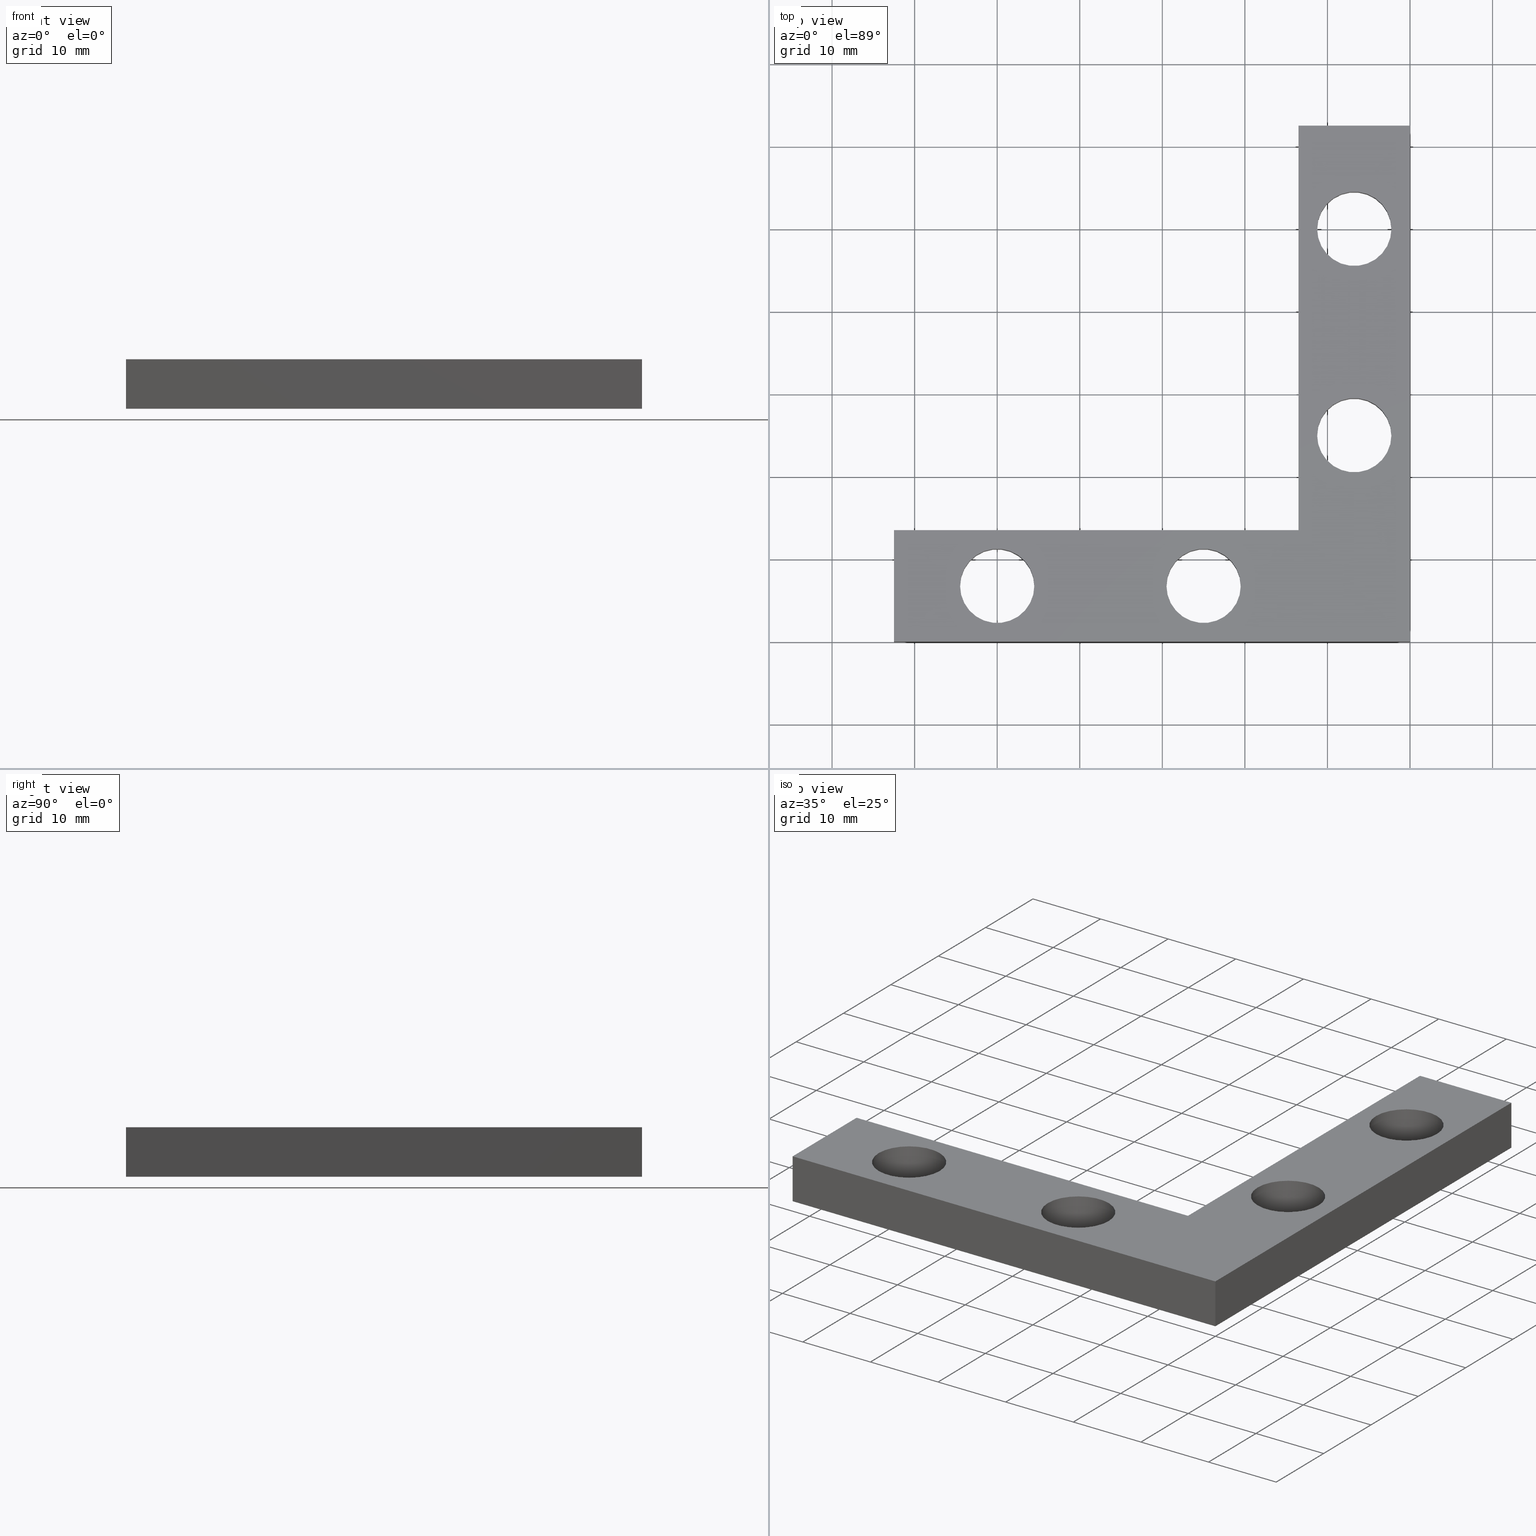
[diagram: canonical four-view strip — front | top / right | iso, engineering-drawing reading convention]
A machine part, canonical four-view strip (front | top / right | iso — engineering-drawing reading convention). The complete STEP part file that produces these views, byte-faithful:
ISO-10303-21;
HEADER;
/****************************************************************
 * Generated by software with PDE/Lib inside                    *
 * PDElib Version v4.4, created Mon 02/23/2004                  *
 * International Technegroup Inc. (www.iti-oh.com)              *
 ****************************************************************/
FILE_DESCRIPTION(('STEP AP203'),'2;1');
FILE_NAME('14.308.00.stp','2011-03-05T12:41:05',(''),(''),'2009.3.110','THINKDESIGN','');
FILE_SCHEMA(('CONFIG_CONTROL_DESIGN'));
ENDSEC;
DATA;
#2=CARTESIAN_POINT('',(-62.500028999750157,0.0,6.0));
#3=DIRECTION('',(0.0,1.0,0.0));
#4=DIRECTION('',(1.0,0.0,0.0));
#5=AXIS2_PLACEMENT_3D('',#2,#3,#4);
#6=PLANE('',#5);
#7=CARTESIAN_POINT('',(-62.500028999750157,0.0,6.0));
#8=VERTEX_POINT('',#7);
#9=CARTESIAN_POINT('',(-62.500028999750157,0.0,0.0));
#10=VERTEX_POINT('',#9);
#11=CARTESIAN_POINT('',(-62.500028999750157,0.0,6.0));
#12=DIRECTION('',(0.0,0.0,-1.0));
#13=VECTOR('',#12,6.0);
#14=LINE('',#11,#13);
#15=EDGE_CURVE('',#8,#10,#14,.T.);
#16=ORIENTED_EDGE('',*,*,#15,.T.);
#17=CARTESIAN_POINT('',(0.0,0.0,0.0));
#18=VERTEX_POINT('',#17);
#19=CARTESIAN_POINT('',(-62.500028999750157,0.0,0.0));
#20=DIRECTION('',(1.0,0.0,0.0));
#21=VECTOR('',#20,62.500028999750157);
#22=LINE('',#19,#21);
#23=EDGE_CURVE('',#10,#18,#22,.T.);
#24=ORIENTED_EDGE('',*,*,#23,.T.);
#25=CARTESIAN_POINT('',(0.0,0.0,6.0));
#26=VERTEX_POINT('',#25);
#27=CARTESIAN_POINT('',(0.0,0.0,6.0));
#28=DIRECTION('',(0.0,0.0,-1.0));
#29=VECTOR('',#28,6.0);
#30=LINE('',#27,#29);
#31=EDGE_CURVE('',#26,#18,#30,.T.);
#32=ORIENTED_EDGE('',*,*,#31,.F.);
#33=CARTESIAN_POINT('',(-62.500028999750157,0.0,6.0));
#34=DIRECTION('',(1.0,0.0,0.0));
#35=VECTOR('',#34,62.500028999750157);
#36=LINE('',#33,#35);
#37=EDGE_CURVE('',#8,#26,#36,.T.);
#38=ORIENTED_EDGE('',*,*,#37,.F.);
#39=EDGE_LOOP('',(#16,#24,#32,#38));
#40=FACE_OUTER_BOUND('',#39,.T.);
#41=ADVANCED_FACE('',(#40),#6,.F.);
#42=CARTESIAN_POINT('',(0.0,0.0,6.0));
#43=DIRECTION('',(-1.0,0.0,0.0));
#44=DIRECTION('',(0.0,1.0,0.0));
#45=AXIS2_PLACEMENT_3D('',#42,#43,#44);
#46=PLANE('',#45);
#47=ORIENTED_EDGE('',*,*,#31,.T.);
#48=CARTESIAN_POINT('',(0.0,62.499999999750344,0.0));
#49=VERTEX_POINT('',#48);
#50=CARTESIAN_POINT('',(0.0,0.0,0.0));
#51=DIRECTION('',(0.0,1.0,0.0));
#52=VECTOR('',#51,62.499999999750344);
#53=LINE('',#50,#52);
#54=EDGE_CURVE('',#18,#49,#53,.T.);
#55=ORIENTED_EDGE('',*,*,#54,.T.);
#56=CARTESIAN_POINT('',(0.0,62.499999999750344,6.0));
#57=VERTEX_POINT('',#56);
#58=CARTESIAN_POINT('',(0.0,62.499999999750344,6.0));
#59=DIRECTION('',(0.0,0.0,-1.0));
#60=VECTOR('',#59,6.0);
#61=LINE('',#58,#60);
#62=EDGE_CURVE('',#57,#49,#61,.T.);
#63=ORIENTED_EDGE('',*,*,#62,.F.);
#64=CARTESIAN_POINT('',(0.0,0.0,6.0));
#65=DIRECTION('',(0.0,1.0,0.0));
#66=VECTOR('',#65,62.499999999750344);
#67=LINE('',#64,#66);
#68=EDGE_CURVE('',#26,#57,#67,.T.);
#69=ORIENTED_EDGE('',*,*,#68,.F.);
#70=EDGE_LOOP('',(#47,#55,#63,#69));
#71=FACE_OUTER_BOUND('',#70,.T.);
#72=ADVANCED_FACE('',(#71),#46,.F.);
#73=CARTESIAN_POINT('',(0.0,62.499999999750344,6.0));
#74=DIRECTION('',(0.0,-1.0,0.0));
#75=DIRECTION('',(-1.0,0.0,0.0));
#76=AXIS2_PLACEMENT_3D('',#73,#74,#75);
#77=PLANE('',#76);
#78=ORIENTED_EDGE('',*,*,#62,.T.);
#79=CARTESIAN_POINT('',(-13.499999999945885,62.499999999750344,0.0));
#80=VERTEX_POINT('',#79);
#81=CARTESIAN_POINT('',(0.0,62.499999999750344,0.0));
#82=DIRECTION('',(-1.0,0.0,0.0));
#83=VECTOR('',#82,13.499999999945885);
#84=LINE('',#81,#83);
#85=EDGE_CURVE('',#49,#80,#84,.T.);
#86=ORIENTED_EDGE('',*,*,#85,.T.);
#87=CARTESIAN_POINT('',(-13.499999999945885,62.499999999750344,6.0));
#88=VERTEX_POINT('',#87);
#89=CARTESIAN_POINT('',(-13.499999999945885,62.499999999750344,6.0));
#90=DIRECTION('',(0.0,0.0,-1.0));
#91=VECTOR('',#90,6.0);
#92=LINE('',#89,#91);
#93=EDGE_CURVE('',#88,#80,#92,.T.);
#94=ORIENTED_EDGE('',*,*,#93,.F.);
#95=CARTESIAN_POINT('',(0.0,62.499999999750344,6.0));
#96=DIRECTION('',(-1.0,0.0,0.0));
#97=VECTOR('',#96,13.499999999945885);
#98=LINE('',#95,#97);
#99=EDGE_CURVE('',#57,#88,#98,.T.);
#100=ORIENTED_EDGE('',*,*,#99,.F.);
#101=EDGE_LOOP('',(#78,#86,#94,#100));
#102=FACE_OUTER_BOUND('',#101,.T.);
#103=ADVANCED_FACE('',(#102),#77,.F.);
#104=CARTESIAN_POINT('',(-13.499999999945885,62.499999999750344,6.0));
#105=DIRECTION('',(1.0,0.0,0.0));
#106=DIRECTION('',(0.0,-1.0,0.0));
#107=AXIS2_PLACEMENT_3D('',#104,#105,#106);
#108=PLANE('',#107);
#109=ORIENTED_EDGE('',*,*,#93,.T.);
#110=CARTESIAN_POINT('',(-13.499999999945885,13.499999999946340,0.0));
#111=VERTEX_POINT('',#110);
#112=CARTESIAN_POINT('',(-13.499999999945885,62.499999999750344,0.0));
#113=DIRECTION('',(0.0,-1.0,0.0));
#114=VECTOR('',#113,48.999999999804004);
#115=LINE('',#112,#114);
#116=EDGE_CURVE('',#80,#111,#115,.T.);
#117=ORIENTED_EDGE('',*,*,#116,.T.);
#118=CARTESIAN_POINT('',(-13.499999999945885,13.499999999946340,6.0));
#119=VERTEX_POINT('',#118);
#120=CARTESIAN_POINT('',(-13.499999999945885,13.499999999946340,6.0));
#121=DIRECTION('',(0.0,0.0,-1.0));
#122=VECTOR('',#121,6.0);
#123=LINE('',#120,#122);
#124=EDGE_CURVE('',#119,#111,#123,.T.);
#125=ORIENTED_EDGE('',*,*,#124,.F.);
#126=CARTESIAN_POINT('',(-13.499999999945885,62.499999999750344,6.0));
#127=DIRECTION('',(0.0,-1.0,0.0));
#128=VECTOR('',#127,48.999999999804004);
#129=LINE('',#126,#128);
#130=EDGE_CURVE('',#88,#119,#129,.T.);
#131=ORIENTED_EDGE('',*,*,#130,.F.);
#132=EDGE_LOOP('',(#109,#117,#125,#131));
#133=FACE_OUTER_BOUND('',#132,.T.);
#134=ADVANCED_FACE('',(#133),#108,.F.);
#135=CARTESIAN_POINT('',(-13.499999999945885,13.499999999946340,6.0));
#136=DIRECTION('',(0.0,-1.0,0.0));
#137=DIRECTION('',(-1.0,0.0,0.0));
#138=AXIS2_PLACEMENT_3D('',#135,#136,#137);
#139=PLANE('',#138);
#140=ORIENTED_EDGE('',*,*,#124,.T.);
#141=CARTESIAN_POINT('',(-62.500028999750157,13.499999999946340,0.0));
#142=VERTEX_POINT('',#141);
#143=CARTESIAN_POINT('',(-13.499999999945885,13.499999999946340,0.0));
#144=DIRECTION('',(-1.0,0.0,0.0));
#145=VECTOR('',#144,49.000028999804272);
#146=LINE('',#143,#145);
#147=EDGE_CURVE('',#111,#142,#146,.T.);
#148=ORIENTED_EDGE('',*,*,#147,.T.);
#149=CARTESIAN_POINT('',(-62.500028999750157,13.499999999946340,6.0));
#150=VERTEX_POINT('',#149);
#151=CARTESIAN_POINT('',(-62.500028999750157,13.499999999946340,6.0));
#152=DIRECTION('',(0.0,0.0,-1.0));
#153=VECTOR('',#152,6.0);
#154=LINE('',#151,#153);
#155=EDGE_CURVE('',#150,#142,#154,.T.);
#156=ORIENTED_EDGE('',*,*,#155,.F.);
#157=CARTESIAN_POINT('',(-13.499999999945885,13.499999999946340,6.0));
#158=DIRECTION('',(-1.0,0.0,0.0));
#159=VECTOR('',#158,49.000028999804272);
#160=LINE('',#157,#159);
#161=EDGE_CURVE('',#119,#150,#160,.T.);
#162=ORIENTED_EDGE('',*,*,#161,.F.);
#163=EDGE_LOOP('',(#140,#148,#156,#162));
#164=FACE_OUTER_BOUND('',#163,.T.);
#165=ADVANCED_FACE('',(#164),#139,.F.);
#166=CARTESIAN_POINT('',(-62.500028999750157,13.499999999946340,6.0));
#167=DIRECTION('',(1.0,0.0,0.0));
#168=DIRECTION('',(0.0,-1.0,0.0));
#169=AXIS2_PLACEMENT_3D('',#166,#167,#168);
#170=PLANE('',#169);
#171=ORIENTED_EDGE('',*,*,#155,.T.);
#172=CARTESIAN_POINT('',(-62.500028999750157,13.499999999946340,0.0));
#173=DIRECTION('',(0.0,-1.0,0.0));
#174=VECTOR('',#173,13.499999999946340);
#175=LINE('',#172,#174);
#176=EDGE_CURVE('',#142,#10,#175,.T.);
#177=ORIENTED_EDGE('',*,*,#176,.T.);
#178=ORIENTED_EDGE('',*,*,#15,.F.);
#179=CARTESIAN_POINT('',(-62.500028999750157,13.499999999946340,6.0));
#180=DIRECTION('',(0.0,-1.0,0.0));
#181=VECTOR('',#180,13.499999999946340);
#182=LINE('',#179,#181);
#183=EDGE_CURVE('',#150,#8,#182,.T.);
#184=ORIENTED_EDGE('',*,*,#183,.F.);
#185=EDGE_LOOP('',(#171,#177,#178,#184));
#186=FACE_OUTER_BOUND('',#185,.T.);
#187=ADVANCED_FACE('',(#186),#170,.F.);
#188=CARTESIAN_POINT('',(-68.750036632804040,-6.250004733020887,6.0));
#189=DIRECTION('',(0.0,0.0,1.0));
#190=DIRECTION('',(1.0,0.0,0.0));
#191=AXIS2_PLACEMENT_3D('',#188,#189,#190);
#192=PLANE('',#191);
#193=ORIENTED_EDGE('',*,*,#37,.T.);
#194=ORIENTED_EDGE('',*,*,#68,.T.);
#195=ORIENTED_EDGE('',*,*,#99,.T.);
#196=ORIENTED_EDGE('',*,*,#130,.T.);
#197=ORIENTED_EDGE('',*,*,#161,.T.);
#198=ORIENTED_EDGE('',*,*,#183,.T.);
#199=EDGE_LOOP('',(#193,#194,#195,#196,#197,#198));
#200=FACE_OUTER_BOUND('',#199,.T.);
#201=CARTESIAN_POINT('',(-54.500028999800179,6.749999999973170,6.0));
#202=VERTEX_POINT('',#201);
#203=CARTESIAN_POINT('',(-45.500028999800179,6.749999999973170,6.0));
#204=VERTEX_POINT('',#203);
#205=CARTESIAN_POINT('',(-50.000028999800179,6.749999999973170,6.0));
#206=DIRECTION('',(0.0,0.0,1.0));
#207=DIRECTION('',(1.0,0.0,0.0));
#208=AXIS2_PLACEMENT_3D('',#205,#206,#207);
#209=CIRCLE('',#208,4.500000000000000);
#210=EDGE_CURVE('',#202,#204,#209,.T.);
#211=ORIENTED_EDGE('',*,*,#210,.F.);
#212=CARTESIAN_POINT('',(-50.000028999800179,6.749999999973170,6.0));
#213=DIRECTION('',(0.0,0.0,1.0));
#214=DIRECTION('',(1.0,0.0,0.0));
#215=AXIS2_PLACEMENT_3D('',#212,#213,#214);
#216=CIRCLE('',#215,4.500000000000000);
#217=EDGE_CURVE('',#204,#202,#216,.T.);
#218=ORIENTED_EDGE('',*,*,#217,.F.);
#219=EDGE_LOOP('',(#211,#218));
#220=FACE_BOUND('',#219,.T.);
#221=CARTESIAN_POINT('',(-29.500028999900223,6.749999999973170,6.0));
#222=VERTEX_POINT('',#221);
#223=CARTESIAN_POINT('',(-20.500028999900223,6.749999999973170,6.0));
#224=VERTEX_POINT('',#223);
#225=CARTESIAN_POINT('',(-25.000028999900223,6.749999999973170,6.0));
#226=DIRECTION('',(0.0,0.0,1.0));
#227=DIRECTION('',(1.0,0.0,0.0));
#228=AXIS2_PLACEMENT_3D('',#225,#226,#227);
#229=CIRCLE('',#228,4.500000000000000);
#230=EDGE_CURVE('',#222,#224,#229,.T.);
#231=ORIENTED_EDGE('',*,*,#230,.F.);
#232=CARTESIAN_POINT('',(-25.000028999900223,6.749999999973170,6.0));
#233=DIRECTION('',(0.0,0.0,1.0));
#234=DIRECTION('',(1.0,0.0,0.0));
#235=AXIS2_PLACEMENT_3D('',#232,#233,#234);
#236=CIRCLE('',#235,4.500000000000000);
#237=EDGE_CURVE('',#224,#222,#236,.T.);
#238=ORIENTED_EDGE('',*,*,#237,.F.);
#239=EDGE_LOOP('',(#231,#238));
#240=FACE_BOUND('',#239,.T.);
#241=CARTESIAN_POINT('',(-11.249999999973170,24.999999999900410,6.0));
#242=VERTEX_POINT('',#241);
#243=CARTESIAN_POINT('',(-2.249999999973170,24.999999999900410,6.0));
#244=VERTEX_POINT('',#243);
#245=CARTESIAN_POINT('',(-6.749999999973170,24.999999999900410,6.0));
#246=DIRECTION('',(0.0,0.0,1.0));
#247=DIRECTION('',(1.0,0.0,0.0));
#248=AXIS2_PLACEMENT_3D('',#245,#246,#247);
#249=CIRCLE('',#248,4.500000000000000);
#250=EDGE_CURVE('',#242,#244,#249,.T.);
#251=ORIENTED_EDGE('',*,*,#250,.F.);
#252=CARTESIAN_POINT('',(-6.749999999973170,24.999999999900410,6.0));
#253=DIRECTION('',(0.0,0.0,1.0));
#254=DIRECTION('',(1.0,0.0,0.0));
#255=AXIS2_PLACEMENT_3D('',#252,#253,#254);
#256=CIRCLE('',#255,4.500000000000000);
#257=EDGE_CURVE('',#244,#242,#256,.T.);
#258=ORIENTED_EDGE('',*,*,#257,.F.);
#259=EDGE_LOOP('',(#251,#258));
#260=FACE_BOUND('',#259,.T.);
#261=CARTESIAN_POINT('',(-11.249999999973170,49.999999999800366,6.0));
#262=VERTEX_POINT('',#261);
#263=CARTESIAN_POINT('',(-2.249999999973170,49.999999999800366,6.0));
#264=VERTEX_POINT('',#263);
#265=CARTESIAN_POINT('',(-6.749999999973170,49.999999999800366,6.0));
#266=DIRECTION('',(0.0,0.0,1.0));
#267=DIRECTION('',(1.0,0.0,0.0));
#268=AXIS2_PLACEMENT_3D('',#265,#266,#267);
#269=CIRCLE('',#268,4.500000000000000);
#270=EDGE_CURVE('',#262,#264,#269,.T.);
#271=ORIENTED_EDGE('',*,*,#270,.F.);
#272=CARTESIAN_POINT('',(-6.749999999973170,49.999999999800366,6.0));
#273=DIRECTION('',(0.0,0.0,1.0));
#274=DIRECTION('',(1.0,0.0,0.0));
#275=AXIS2_PLACEMENT_3D('',#272,#273,#274);
#276=CIRCLE('',#275,4.500000000000000);
#277=EDGE_CURVE('',#264,#262,#276,.T.);
#278=ORIENTED_EDGE('',*,*,#277,.F.);
#279=EDGE_LOOP('',(#271,#278));
#280=FACE_BOUND('',#279,.T.);
#281=ADVANCED_FACE('',(#200,#220,#240,#260,#280),#192,.T.);
#282=CARTESIAN_POINT('',(-68.750036632804040,-6.250004733020887,0.0));
#283=DIRECTION('',(0.0,0.0,1.0));
#284=DIRECTION('',(1.0,0.0,0.0));
#285=AXIS2_PLACEMENT_3D('',#282,#283,#284);
#286=PLANE('',#285);
#287=ORIENTED_EDGE('',*,*,#176,.F.);
#288=ORIENTED_EDGE('',*,*,#147,.F.);
#289=ORIENTED_EDGE('',*,*,#116,.F.);
#290=ORIENTED_EDGE('',*,*,#85,.F.);
#291=ORIENTED_EDGE('',*,*,#54,.F.);
#292=ORIENTED_EDGE('',*,*,#23,.F.);
#293=EDGE_LOOP('',(#287,#288,#289,#290,#291,#292));
#294=FACE_OUTER_BOUND('',#293,.T.);
#295=CARTESIAN_POINT('',(-54.500028999800179,6.749999999973170,0.0));
#296=VERTEX_POINT('',#295);
#297=CARTESIAN_POINT('',(-45.500028999800179,6.749999999973170,0.0));
#298=VERTEX_POINT('',#297);
#299=CARTESIAN_POINT('',(-50.000028999800179,6.749999999973170,0.0));
#300=DIRECTION('',(0.0,0.0,-1.0));
#301=DIRECTION('',(1.0,0.0,0.0));
#302=AXIS2_PLACEMENT_3D('',#299,#300,#301);
#303=CIRCLE('',#302,4.500000000000000);
#304=EDGE_CURVE('',#296,#298,#303,.T.);
#305=ORIENTED_EDGE('',*,*,#304,.F.);
#306=CARTESIAN_POINT('',(-50.000028999800179,6.749999999973170,0.0));
#307=DIRECTION('',(0.0,0.0,-1.0));
#308=DIRECTION('',(1.0,0.0,0.0));
#309=AXIS2_PLACEMENT_3D('',#306,#307,#308);
#310=CIRCLE('',#309,4.500000000000000);
#311=EDGE_CURVE('',#298,#296,#310,.T.);
#312=ORIENTED_EDGE('',*,*,#311,.F.);
#313=EDGE_LOOP('',(#305,#312));
#314=FACE_BOUND('',#313,.T.);
#315=CARTESIAN_POINT('',(-29.500028999900223,6.749999999973170,0.0));
#316=VERTEX_POINT('',#315);
#317=CARTESIAN_POINT('',(-20.500028999900223,6.749999999973170,0.0));
#318=VERTEX_POINT('',#317);
#319=CARTESIAN_POINT('',(-25.000028999900223,6.749999999973170,0.0));
#320=DIRECTION('',(0.0,0.0,-1.0));
#321=DIRECTION('',(1.0,0.0,0.0));
#322=AXIS2_PLACEMENT_3D('',#319,#320,#321);
#323=CIRCLE('',#322,4.500000000000000);
#324=EDGE_CURVE('',#316,#318,#323,.T.);
#325=ORIENTED_EDGE('',*,*,#324,.F.);
#326=CARTESIAN_POINT('',(-25.000028999900223,6.749999999973170,0.0));
#327=DIRECTION('',(0.0,0.0,-1.0));
#328=DIRECTION('',(1.0,0.0,0.0));
#329=AXIS2_PLACEMENT_3D('',#326,#327,#328);
#330=CIRCLE('',#329,4.500000000000000);
#331=EDGE_CURVE('',#318,#316,#330,.T.);
#332=ORIENTED_EDGE('',*,*,#331,.F.);
#333=EDGE_LOOP('',(#325,#332));
#334=FACE_BOUND('',#333,.T.);
#335=CARTESIAN_POINT('',(-11.249999999973170,24.999999999900410,0.0));
#336=VERTEX_POINT('',#335);
#337=CARTESIAN_POINT('',(-2.249999999973170,24.999999999900410,0.0));
#338=VERTEX_POINT('',#337);
#339=CARTESIAN_POINT('',(-6.749999999973170,24.999999999900410,0.0));
#340=DIRECTION('',(0.0,0.0,-1.0));
#341=DIRECTION('',(1.0,0.0,0.0));
#342=AXIS2_PLACEMENT_3D('',#339,#340,#341);
#343=CIRCLE('',#342,4.500000000000000);
#344=EDGE_CURVE('',#336,#338,#343,.T.);
#345=ORIENTED_EDGE('',*,*,#344,.F.);
#346=CARTESIAN_POINT('',(-6.749999999973170,24.999999999900410,0.0));
#347=DIRECTION('',(0.0,0.0,-1.0));
#348=DIRECTION('',(1.0,0.0,0.0));
#349=AXIS2_PLACEMENT_3D('',#346,#347,#348);
#350=CIRCLE('',#349,4.500000000000000);
#351=EDGE_CURVE('',#338,#336,#350,.T.);
#352=ORIENTED_EDGE('',*,*,#351,.F.);
#353=EDGE_LOOP('',(#345,#352));
#354=FACE_BOUND('',#353,.T.);
#355=CARTESIAN_POINT('',(-11.249999999973170,49.999999999800366,0.0));
#356=VERTEX_POINT('',#355);
#357=CARTESIAN_POINT('',(-2.249999999973170,49.999999999800366,0.0));
#358=VERTEX_POINT('',#357);
#359=CARTESIAN_POINT('',(-6.749999999973170,49.999999999800366,0.0));
#360=DIRECTION('',(0.0,0.0,-1.0));
#361=DIRECTION('',(1.0,0.0,0.0));
#362=AXIS2_PLACEMENT_3D('',#359,#360,#361);
#363=CIRCLE('',#362,4.500000000000000);
#364=EDGE_CURVE('',#356,#358,#363,.T.);
#365=ORIENTED_EDGE('',*,*,#364,.F.);
#366=CARTESIAN_POINT('',(-6.749999999973170,49.999999999800366,0.0));
#367=DIRECTION('',(0.0,0.0,-1.0));
#368=DIRECTION('',(1.0,0.0,0.0));
#369=AXIS2_PLACEMENT_3D('',#366,#367,#368);
#370=CIRCLE('',#369,4.500000000000000);
#371=EDGE_CURVE('',#358,#356,#370,.T.);
#372=ORIENTED_EDGE('',*,*,#371,.F.);
#373=EDGE_LOOP('',(#365,#372));
#374=FACE_BOUND('',#373,.T.);
#375=ADVANCED_FACE('',(#294,#314,#334,#354,#374),#286,.F.);
#376=CARTESIAN_POINT('',(-50.000028999800179,6.749999999973170,6.0));
#377=DIRECTION('',(0.0,0.0,1.0));
#378=DIRECTION('',(1.0,0.0,0.0));
#379=AXIS2_PLACEMENT_3D('',#376,#377,#378);
#380=CYLINDRICAL_SURFACE('',#379,4.500000000000000);
#381=CARTESIAN_POINT('',(-45.500028999800179,6.749999999973170,6.0));
#382=DIRECTION('',(0.0,0.0,-1.0));
#383=VECTOR('',#382,6.0);
#384=LINE('',#381,#383);
#385=EDGE_CURVE('',#204,#298,#384,.T.);
#386=ORIENTED_EDGE('',*,*,#385,.T.);
#387=ORIENTED_EDGE('',*,*,#311,.T.);
#388=ORIENTED_EDGE('',*,*,#304,.T.);
#389=ORIENTED_EDGE('',*,*,#385,.F.);
#390=ORIENTED_EDGE('',*,*,#217,.T.);
#391=ORIENTED_EDGE('',*,*,#210,.T.);
#392=EDGE_LOOP('',(#386,#387,#388,#389,#390,#391));
#393=FACE_OUTER_BOUND('',#392,.T.);
#394=ADVANCED_FACE('',(#393),#380,.F.);
#395=CARTESIAN_POINT('',(-25.000028999900223,6.749999999973170,6.0));
#396=DIRECTION('',(0.0,0.0,1.0));
#397=DIRECTION('',(1.0,0.0,0.0));
#398=AXIS2_PLACEMENT_3D('',#395,#396,#397);
#399=CYLINDRICAL_SURFACE('',#398,4.500000000000000);
#400=CARTESIAN_POINT('',(-20.500028999900223,6.749999999973170,6.0));
#401=DIRECTION('',(0.0,0.0,-1.0));
#402=VECTOR('',#401,6.0);
#403=LINE('',#400,#402);
#404=EDGE_CURVE('',#224,#318,#403,.T.);
#405=ORIENTED_EDGE('',*,*,#404,.T.);
#406=ORIENTED_EDGE('',*,*,#331,.T.);
#407=ORIENTED_EDGE('',*,*,#324,.T.);
#408=ORIENTED_EDGE('',*,*,#404,.F.);
#409=ORIENTED_EDGE('',*,*,#237,.T.);
#410=ORIENTED_EDGE('',*,*,#230,.T.);
#411=EDGE_LOOP('',(#405,#406,#407,#408,#409,#410));
#412=FACE_OUTER_BOUND('',#411,.T.);
#413=ADVANCED_FACE('',(#412),#399,.F.);
#414=CARTESIAN_POINT('',(-6.749999999973170,24.999999999900410,6.0));
#415=DIRECTION('',(0.0,0.0,1.0));
#416=DIRECTION('',(1.0,0.0,0.0));
#417=AXIS2_PLACEMENT_3D('',#414,#415,#416);
#418=CYLINDRICAL_SURFACE('',#417,4.500000000000000);
#419=CARTESIAN_POINT('',(-2.249999999973170,24.999999999900410,6.0));
#420=DIRECTION('',(0.0,0.0,-1.0));
#421=VECTOR('',#420,6.0);
#422=LINE('',#419,#421);
#423=EDGE_CURVE('',#244,#338,#422,.T.);
#424=ORIENTED_EDGE('',*,*,#423,.T.);
#425=ORIENTED_EDGE('',*,*,#351,.T.);
#426=ORIENTED_EDGE('',*,*,#344,.T.);
#427=ORIENTED_EDGE('',*,*,#423,.F.);
#428=ORIENTED_EDGE('',*,*,#257,.T.);
#429=ORIENTED_EDGE('',*,*,#250,.T.);
#430=EDGE_LOOP('',(#424,#425,#426,#427,#428,#429));
#431=FACE_OUTER_BOUND('',#430,.T.);
#432=ADVANCED_FACE('',(#431),#418,.F.);
#433=CARTESIAN_POINT('',(-6.749999999973170,49.999999999800366,6.0));
#434=DIRECTION('',(0.0,0.0,1.0));
#435=DIRECTION('',(1.0,0.0,0.0));
#436=AXIS2_PLACEMENT_3D('',#433,#434,#435);
#437=CYLINDRICAL_SURFACE('',#436,4.500000000000000);
#438=CARTESIAN_POINT('',(-2.249999999973170,49.999999999800366,6.0));
#439=DIRECTION('',(0.0,0.0,-1.0));
#440=VECTOR('',#439,6.0);
#441=LINE('',#438,#440);
#442=EDGE_CURVE('',#264,#358,#441,.T.);
#443=ORIENTED_EDGE('',*,*,#442,.T.);
#444=ORIENTED_EDGE('',*,*,#371,.T.);
#445=ORIENTED_EDGE('',*,*,#364,.T.);
#446=ORIENTED_EDGE('',*,*,#442,.F.);
#447=ORIENTED_EDGE('',*,*,#277,.T.);
#448=ORIENTED_EDGE('',*,*,#270,.T.);
#449=EDGE_LOOP('',(#443,#444,#445,#446,#447,#448));
#450=FACE_OUTER_BOUND('',#449,.T.);
#451=ADVANCED_FACE('',(#450),#437,.F.);
#452=CLOSED_SHELL('',(#41,#72,#103,#134,#165,#187,#281,#375,#394,#413,#432,#451));
#453=MANIFOLD_SOLID_BREP('',#452);
#459=(NAMED_UNIT(*)PLANE_ANGLE_UNIT()SI_UNIT($,.RADIAN.));
#460=DIMENSIONAL_EXPONENTS(0.0,0.0,0.0,0.0,0.0,0.0,0.0);
#461=PLANE_ANGLE_MEASURE_WITH_UNIT(PLANE_ANGLE_MEASURE(0.017453292500000),#459);
#465=(CONVERSION_BASED_UNIT('DEGREE',#461)NAMED_UNIT(#460)PLANE_ANGLE_UNIT());
#469=(NAMED_UNIT(*)SI_UNIT($,.STERADIAN.)SOLID_ANGLE_UNIT());
#473=(LENGTH_UNIT()NAMED_UNIT(*)SI_UNIT(.MILLI.,.METRE.));
#475=UNCERTAINTY_MEASURE_WITH_UNIT(LENGTH_MEASURE(0.001000000000000),#473,'DISTANCE_ACCURACY_VALUE','');
#477=(GEOMETRIC_REPRESENTATION_CONTEXT(3)GLOBAL_UNCERTAINTY_ASSIGNED_CONTEXT((#475))GLOBAL_UNIT_ASSIGNED_CONTEXT((#465,#469,#473))REPRESENTATION_CONTEXT('thinkdesign','2009.3.110'));
#478=ADVANCED_BREP_SHAPE_REPRESENTATION('',(#453),#477);
#479=APPLICATION_CONTEXT('configuration controlled 3D designs of mechanical parts and assemblies');
#480=APPLICATION_PROTOCOL_DEFINITION('International Standard','config_control_design',1995,#479);
#481=MECHANICAL_CONTEXT('None',#479,'mechanical');
#482=PRODUCT('None','None','None',(#481));
#483=PRODUCT_RELATED_PRODUCT_CATEGORY('detail',$,(#482));
#484=PRODUCT_CATEGORY('part',$);
#485=PRODUCT_CATEGORY_RELATIONSHIP('None','None',#484,#483);
#486=PERSON('PERSON1','None','None',$,$,$);
#487=ORGANIZATION('','None','None');
#488=PERSON_AND_ORGANIZATION(#486,#487);
#489=PERSON_AND_ORGANIZATION_ROLE('design_owner');
#490=CC_DESIGN_PERSON_AND_ORGANIZATION_ASSIGNMENT(#488,#489,(#482));
#491=PRODUCT_DEFINITION_FORMATION_WITH_SPECIFIED_SOURCE('None','None',#482,.NOT_KNOWN.);
#492=PERSON('PERSON2','None','None',$,$,$);
#493=ORGANIZATION('','None','None');
#494=PERSON_AND_ORGANIZATION(#492,#493);
#495=PERSON_AND_ORGANIZATION_ROLE('creator');
#496=CC_DESIGN_PERSON_AND_ORGANIZATION_ASSIGNMENT(#494,#495,(#491));
#497=PERSON('PERSON3','None','None',$,$,$);
#498=ORGANIZATION('','None','None');
#499=PERSON_AND_ORGANIZATION(#497,#498);
#500=PERSON_AND_ORGANIZATION_ROLE('part_supplier');
#501=CC_DESIGN_PERSON_AND_ORGANIZATION_ASSIGNMENT(#499,#500,(#491));
#502=APPROVAL_STATUS('approved');
#503=APPROVAL(#502,'None');
#504=PERSON('PERSON4','None','None',$,$,$);
#505=ORGANIZATION('','None','None');
#506=PERSON_AND_ORGANIZATION(#504,#505);
#507=APPROVAL_ROLE('None');
#508=APPROVAL_PERSON_ORGANIZATION(#506,#503,#507);
#509=CALENDAR_DATE(2011,5,3);
#510=COORDINATED_UNIVERSAL_TIME_OFFSET(0,0,.AHEAD.);
#511=LOCAL_TIME(12,41,5.0,#510);
#512=DATE_AND_TIME(#509,#511);
#513=APPROVAL_DATE_TIME(#512,#503);
#514=CC_DESIGN_APPROVAL(#503,(#491));
#515=SECURITY_CLASSIFICATION_LEVEL('unclassified');
#516=SECURITY_CLASSIFICATION('None','None',#515);
#517=CC_DESIGN_SECURITY_CLASSIFICATION(#516,(#491));
#518=APPROVAL_STATUS('approved');
#519=APPROVAL(#518,'None');
#520=PERSON('PERSON5','None','None',$,$,$);
#521=ORGANIZATION('','None','None');
#522=PERSON_AND_ORGANIZATION(#520,#521);
#523=APPROVAL_ROLE('None');
#524=APPROVAL_PERSON_ORGANIZATION(#522,#519,#523);
#525=CALENDAR_DATE(2011,5,3);
#526=COORDINATED_UNIVERSAL_TIME_OFFSET(0,0,.AHEAD.);
#527=LOCAL_TIME(12,41,5.0,#526);
#528=DATE_AND_TIME(#525,#527);
#529=APPROVAL_DATE_TIME(#528,#519);
#530=CC_DESIGN_APPROVAL(#519,(#516));
#531=PERSON('PERSON6','None','None',$,$,$);
#532=ORGANIZATION('','None','None');
#533=PERSON_AND_ORGANIZATION(#531,#532);
#534=PERSON_AND_ORGANIZATION_ROLE('classification_officer');
#535=CC_DESIGN_PERSON_AND_ORGANIZATION_ASSIGNMENT(#533,#534,(#516));
#536=DATE_TIME_ROLE('classification_date');
#537=CALENDAR_DATE(2011,5,3);
#538=COORDINATED_UNIVERSAL_TIME_OFFSET(0,0,.AHEAD.);
#539=LOCAL_TIME(12,41,5.0,#538);
#540=DATE_AND_TIME(#537,#539);
#541=CC_DESIGN_DATE_AND_TIME_ASSIGNMENT(#540,#536,(#516));
#542=DESIGN_CONTEXT('part definition',#479,'design');
#543=DOCUMENT_TYPE('cad_filename');
#544=DOCUMENT('None','None','None',#543);
#545=PRODUCT_DEFINITION_WITH_ASSOCIATED_DOCUMENTS('None','None',#491,#542,(#544));
#546=PERSON('PERSON7','None','None',$,$,$);
#547=ORGANIZATION('','None','None');
#548=PERSON_AND_ORGANIZATION(#546,#547);
#549=PERSON_AND_ORGANIZATION_ROLE('creator');
#550=CC_DESIGN_PERSON_AND_ORGANIZATION_ASSIGNMENT(#548,#549,(#545));
#551=DATE_TIME_ROLE('creation_date');
#552=CALENDAR_DATE(2011,5,3);
#553=COORDINATED_UNIVERSAL_TIME_OFFSET(0,0,.AHEAD.);
#554=LOCAL_TIME(12,41,5.0,#553);
#555=DATE_AND_TIME(#552,#554);
#556=CC_DESIGN_DATE_AND_TIME_ASSIGNMENT(#555,#551,(#545));
#557=APPROVAL_STATUS('approved');
#558=APPROVAL(#557,'None');
#559=PERSON('PERSON8','None','None',$,$,$);
#560=ORGANIZATION('','None','None');
#561=PERSON_AND_ORGANIZATION(#559,#560);
#562=APPROVAL_ROLE('None');
#563=APPROVAL_PERSON_ORGANIZATION(#561,#558,#562);
#564=CALENDAR_DATE(2011,5,3);
#565=COORDINATED_UNIVERSAL_TIME_OFFSET(0,0,.AHEAD.);
#566=LOCAL_TIME(12,41,5.0,#565);
#567=DATE_AND_TIME(#564,#566);
#568=APPROVAL_DATE_TIME(#567,#558);
#569=CC_DESIGN_APPROVAL(#558,(#545));
#570=PRODUCT_DEFINITION_SHAPE('None','None',#545);
#571=SHAPE_DEFINITION_REPRESENTATION(#570,#478);
#572=DIMENSIONAL_EXPONENTS(0.0,0.0,0.0,0.0,0.0,0.0,0.0);
#573=DIMENSIONAL_EXPONENTS(1.0,0.0,0.0,0.0,0.0,0.0,0.0);
ENDSEC;
END-ISO-10303-21;
